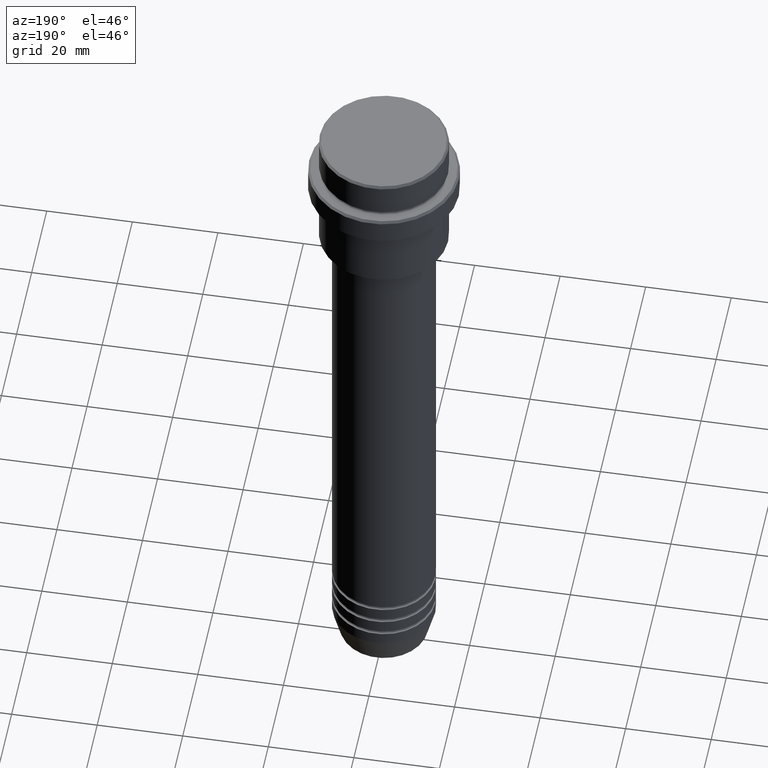
[diagram: clean part render]
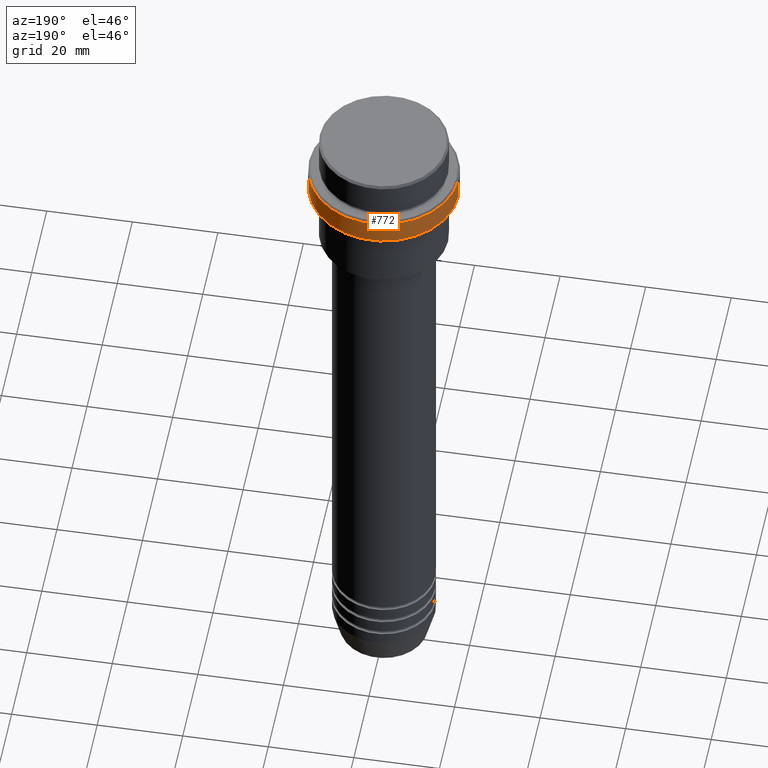
[diagram: same view with one face highlighted and labeled with its STEP entity id]
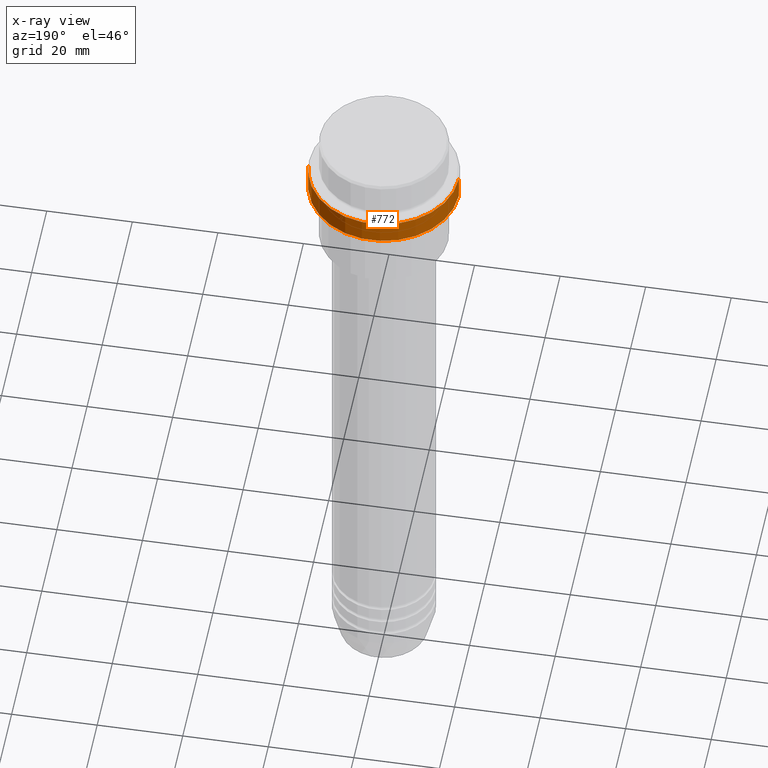
[diagram: x-ray of the same camera — body ghosted, the highlighted face saturated]
A machine part, auxiliary view. The second image highlights one B-rep face of the part: STEP entity #772.
The next image is the same camera in x-ray: the body ghosted, the highlighted face saturated — about 0% of this face is hidden behind the body in this view.
In plain terms, the highlighted cylindrical surface (partial cylindrical patch) has radius 17.5 mm, axis along (-0, -0, 1).
Its self-contained STEP definition (entity closure, byte-faithful):
#14 = AXIS2_PLACEMENT_3D ( 'NONE', #704, #938, #819 ) ;
#59 = AXIS2_PLACEMENT_3D ( 'NONE', #116, #1327, #1212 ) ;
#116 = CARTESIAN_POINT ( 'NONE',  ( 0.000000000000000000, 0.000000000000000000, -15.00000000000000000 ) ) ;
#138 = CARTESIAN_POINT ( 'NONE',  ( 0.000000000000000000, 0.000000000000000000, 0.000000000000000000 ) ) ;
#143 = DIRECTION ( 'NONE',  ( -0.000000000000000000, -0.000000000000000000, 1.000000000000000000 ) ) ;
#176 = CARTESIAN_POINT ( 'NONE',  ( -17.50000000000000000, 2.143131898507868248E-15, -9.500000000000014211 ) ) ;
#206 = CARTESIAN_POINT ( 'NONE',  ( 17.50000000000000000, 0.000000000000000000, 0.000000000000000000 ) ) ;
#223 = LINE ( 'NONE', #206, #683 ) ;
#264 = ORIENTED_EDGE ( 'NONE', *, *, #709, .T. ) ;
#272 = ORIENTED_EDGE ( 'NONE', *, *, #1026, .F. ) ;
#336 = CIRCLE ( 'NONE', #14, 17.50000000000000000 ) ;
#387 = VERTEX_POINT ( 'NONE', #1191 ) ;
#390 = CARTESIAN_POINT ( 'NONE',  ( -17.50000000000000000, 2.143131898507868248E-15, 0.000000000000000000 ) ) ;
#433 = AXIS2_PLACEMENT_3D ( 'NONE', #138, #143, #586 ) ;
#453 = CIRCLE ( 'NONE', #59, 17.50000000000000000 ) ;
#468 = VERTEX_POINT ( 'NONE', #961 ) ;
#489 = ORIENTED_EDGE ( 'NONE', *, *, #760, .T. ) ;
#533 = EDGE_CURVE ( 'NONE', #387, #468, #453, .T. ) ;
#586 = DIRECTION ( 'NONE',  ( 1.000000000000000000, 0.000000000000000000, 0.000000000000000000 ) ) ;
#599 = EDGE_LOOP ( 'NONE', ( #1003, #489, #264, #272 ) ) ;
#683 = VECTOR ( 'NONE', #1211, 1000.000000000000000 ) ;
#704 = CARTESIAN_POINT ( 'NONE',  ( 0.000000000000000000, 0.000000000000000000, -9.500000000000014211 ) ) ;
#709 = EDGE_CURVE ( 'NONE', #896, #823, #336, .T. ) ;
#752 = VECTOR ( 'NONE', #1148, 1000.000000000000000 ) ;
#760 = EDGE_CURVE ( 'NONE', #468, #896, #1365, .T. ) ;
#772 = ADVANCED_FACE ( 'NONE', ( #1128 ), #1122, .T. ) ;
#819 = DIRECTION ( 'NONE',  ( 1.000000000000000000, 0.000000000000000000, 0.000000000000000000 ) ) ;
#823 = VERTEX_POINT ( 'NONE', #1269 ) ;
#896 = VERTEX_POINT ( 'NONE', #176 ) ;
#938 = DIRECTION ( 'NONE',  ( 0.000000000000000000, 0.000000000000000000, -1.000000000000000000 ) ) ;
#961 = CARTESIAN_POINT ( 'NONE',  ( -17.50000000000000000, 2.143131898507868248E-15, -15.00000000000000000 ) ) ;
#1003 = ORIENTED_EDGE ( 'NONE', *, *, #533, .T. ) ;
#1026 = EDGE_CURVE ( 'NONE', #387, #823, #223, .T. ) ;
#1122 = CYLINDRICAL_SURFACE ( 'NONE', #433, 17.50000000000000000 ) ;
#1128 = FACE_OUTER_BOUND ( 'NONE', #599, .T. ) ;
#1148 = DIRECTION ( 'NONE',  ( -0.000000000000000000, -0.000000000000000000, 1.000000000000000000 ) ) ;
#1191 = CARTESIAN_POINT ( 'NONE',  ( 17.50000000000000000, 0.000000000000000000, -15.00000000000000000 ) ) ;
#1211 = DIRECTION ( 'NONE',  ( -0.000000000000000000, -0.000000000000000000, 1.000000000000000000 ) ) ;
#1212 = DIRECTION ( 'NONE',  ( 1.000000000000000000, 0.000000000000000000, 0.000000000000000000 ) ) ;
#1269 = CARTESIAN_POINT ( 'NONE',  ( 17.50000000000000000, 0.000000000000000000, -9.500000000000014211 ) ) ;
#1327 = DIRECTION ( 'NONE',  ( -0.000000000000000000, -0.000000000000000000, 1.000000000000000000 ) ) ;
#1365 = LINE ( 'NONE', #390, #752 ) ;